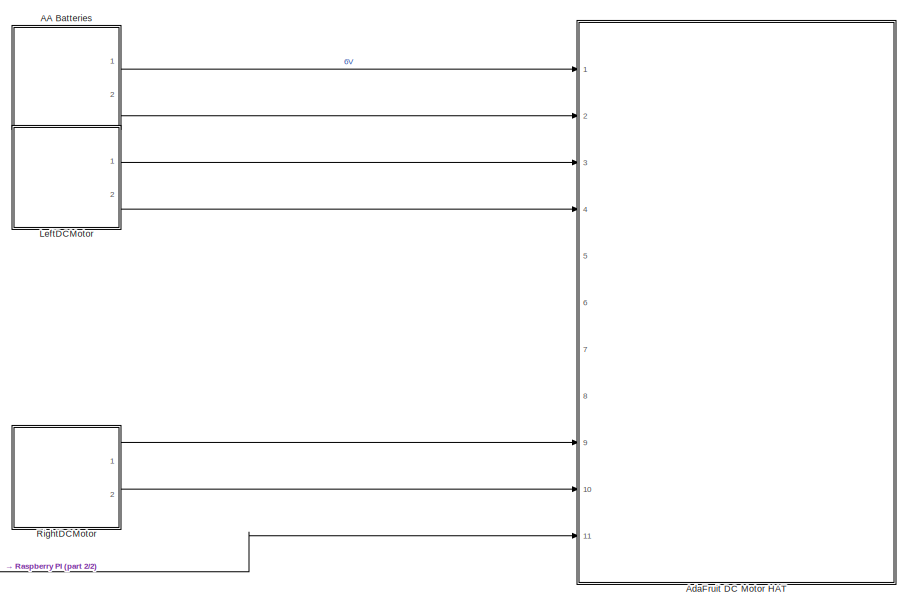
[diagram: root canvas - part 1/2, right side, full height]
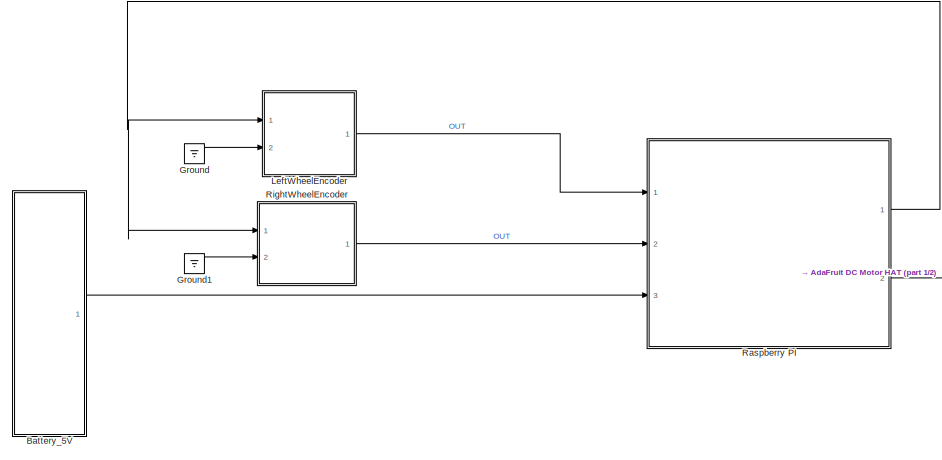
[diagram: root canvas - part 2/2, bottom left region]
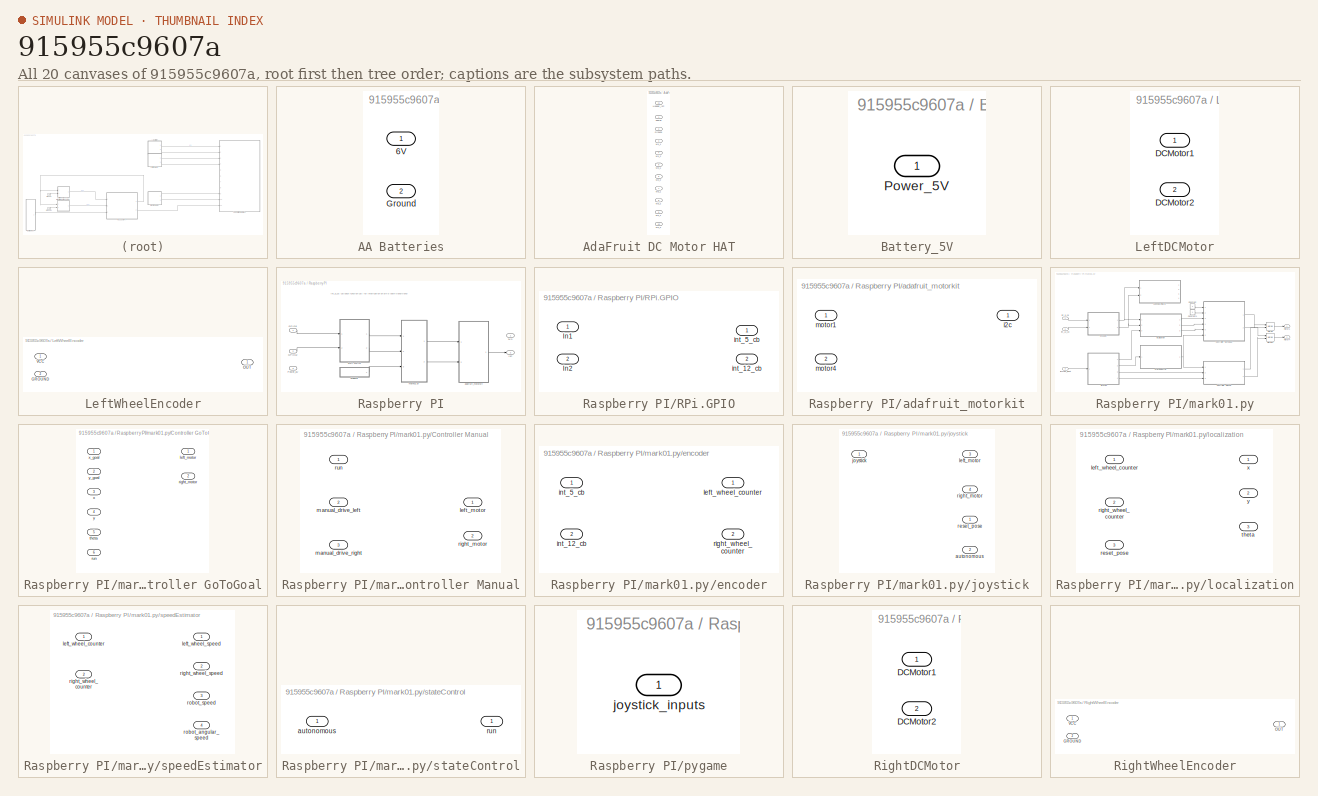
[diagram: thumbnail index - all 20 canvases of the model, root first then tree order]
MODEL slx_915955c9607a
KIND model
CONFIG AbsTol = auto
CONFIG EnableMultiTasking = off
CONFIG FixedStep = auto
CONFIG MaxStep = auto
CONFIG MinStep = auto
CONFIG RelTol = 1e-3
CONFIG SampleTimeConstraint = Unconstrained
CONFIG Solver = VariableStepAuto
CONFIG SolverName = VariableStepAuto
CONFIG StartTime = 0.0
CONFIG StopTime = 10.0
BLOCK [SubSystem] AA Batteries
  Ports = [0, 2]
  RequestExecContextInheritance = off
BLOCK [Outport] AA Batteries/6V
  IconDisplay = Port number
BLOCK [Outport] AA Batteries/Ground
  IconDisplay = Port number
  Port = 2
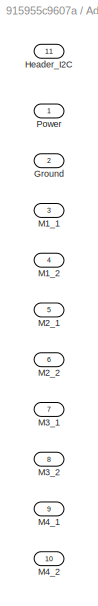
BLOCK [SubSystem] AdaFruit DC Motor HAT
  Ports = [11]
  RequestExecContextInheritance = off
BLOCK [Inport] AdaFruit DC Motor HAT/Ground
  IconDisplay = Port number
  Port = 2
BLOCK [Inport] AdaFruit DC Motor HAT/Header_I2C
  IconDisplay = Port number
  Port = 11
BLOCK [Inport] AdaFruit DC Motor HAT/M1_1
  IconDisplay = Port number
  Port = 3
BLOCK [Inport] AdaFruit DC Motor HAT/M1_2
  IconDisplay = Port number
  Port = 4
BLOCK [Inport] AdaFruit DC Motor HAT/M2_1
  IconDisplay = Port number
  Port = 5
BLOCK [Inport] AdaFruit DC Motor HAT/M2_2
  IconDisplay = Port number
  Port = 6
BLOCK [Inport] AdaFruit DC Motor HAT/M3_1
  IconDisplay = Port number
  Port = 7
BLOCK [Inport] AdaFruit DC Motor HAT/M3_2
  IconDisplay = Port number
  Port = 8
BLOCK [Inport] AdaFruit DC Motor HAT/M4_1
  IconDisplay = Port number
  Port = 9
BLOCK [Inport] AdaFruit DC Motor HAT/M4_2
  IconDisplay = Port number
  Port = 10
BLOCK [Inport] AdaFruit DC Motor HAT/Power
  IconDisplay = Port number
BLOCK [SubSystem] Battery_5V
  Ports = [0, 1]
  RequestExecContextInheritance = off
BLOCK [Outport] Battery_5V/Power_5V
  IconDisplay = Port number
BLOCK [Ground] Ground
BLOCK [Ground] Ground1
BLOCK [SubSystem] LeftDCMotor
  Ports = [0, 2]
  RequestExecContextInheritance = off
BLOCK [Outport] LeftDCMotor/DCMotor1
  IconDisplay = Port number
BLOCK [Outport] LeftDCMotor/DCMotor2
  IconDisplay = Port number
  Port = 2
BLOCK [SubSystem] LeftWheelEncoder
  Ports = [2, 1]
  RequestExecContextInheritance = off
BLOCK [Inport] LeftWheelEncoder/GROUND
  IconDisplay = Port number
  Port = 2
BLOCK [Outport] LeftWheelEncoder/OUT
  IconDisplay = Port number
BLOCK [Inport] LeftWheelEncoder/VCC
  IconDisplay = Port number
BLOCK [SubSystem] Raspberry PI
  Ports = [3, 2]
  RequestExecContextInheritance = off
BLOCK [Outport] Raspberry PI/3V3
  IconDisplay = Port number
BLOCK [Inport] Raspberry PI/GPIO12
  IconDisplay = Port number
  Port = 2
BLOCK [Inport] Raspberry PI/GPIO5
  IconDisplay = Port number
BLOCK [Outport] Raspberry PI/I2C
  IconDisplay = Port number
  Port = 2
BLOCK [Inport] Raspberry PI/Power_5V
  IconDisplay = Port number
  Port = 3
BLOCK [SubSystem] Raspberry PI/RPi.GPIO
  Ports = [2, 2]
  RequestExecContextInheritance = off
BLOCK [Inport] Raspberry PI/RPi.GPIO/In1
  IconDisplay = Port number
BLOCK [Inport] Raspberry PI/RPi.GPIO/In2
  IconDisplay = Port number
  Port = 2
BLOCK [Outport] Raspberry PI/RPi.GPIO/int_12_cb
  IconDisplay = Port number
  Port = 2
BLOCK [Outport] Raspberry PI/RPi.GPIO/int_5_cb
  IconDisplay = Port number
BLOCK [SubSystem] Raspberry PI/adafruit_motorkit
  Ports = [2, 1]
  RequestExecContextInheritance = off
BLOCK [Outport] Raspberry PI/adafruit_motorkit/i2c
  IconDisplay = Port number
BLOCK [Inport] Raspberry PI/adafruit_motorkit/motor1
  IconDisplay = Port number
BLOCK [Inport] Raspberry PI/adafruit_motorkit/motor4
  IconDisplay = Port number
  Port = 2
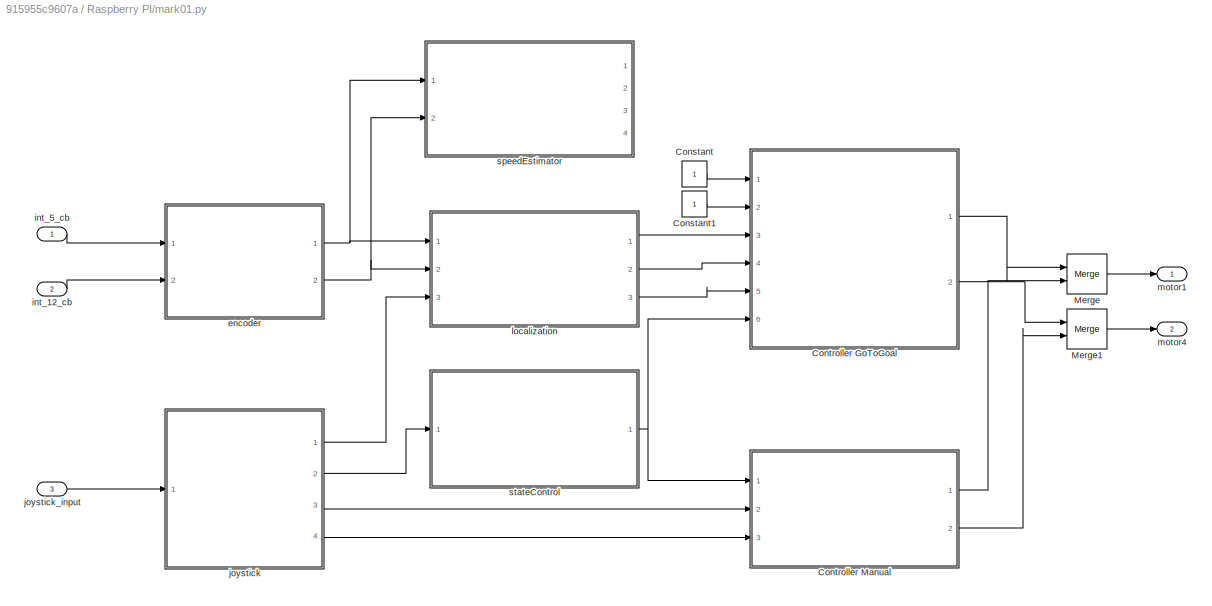
BLOCK [SubSystem] Raspberry PI/mark01.py
  Ports = [3, 2]
  RequestExecContextInheritance = off
BLOCK [Constant] Raspberry PI/mark01.py/Constant
BLOCK [Constant] Raspberry PI/mark01.py/Constant1
BLOCK [SubSystem] Raspberry PI/mark01.py/Controller GoToGoal
  Ports = [6, 2]
  RequestExecContextInheritance = off
BLOCK [Outport] Raspberry PI/mark01.py/Controller GoToGoal/left_motor
  IconDisplay = Port number
BLOCK [Outport] Raspberry PI/mark01.py/Controller GoToGoal/right_motor
  IconDisplay = Port number
  Port = 2
BLOCK [Inport] Raspberry PI/mark01.py/Controller GoToGoal/run
  IconDisplay = Port number
  Port = 6
BLOCK [Inport] Raspberry PI/mark01.py/Controller GoToGoal/theta
  IconDisplay = Port number
  Port = 5
BLOCK [Inport] Raspberry PI/mark01.py/Controller GoToGoal/x
  IconDisplay = Port number
  Port = 3
BLOCK [Inport] Raspberry PI/mark01.py/Controller GoToGoal/x_goal
  IconDisplay = Port number
BLOCK [Inport] Raspberry PI/mark01.py/Controller GoToGoal/y
  IconDisplay = Port number
  Port = 4
BLOCK [Inport] Raspberry PI/mark01.py/Controller GoToGoal/y_goal
  IconDisplay = Port number
  Port = 2
BLOCK [SubSystem] Raspberry PI/mark01.py/Controller Manual
  Ports = [3, 2]
  RequestExecContextInheritance = off
BLOCK [Outport] Raspberry PI/mark01.py/Controller Manual/left_motor
  IconDisplay = Port number
BLOCK [Inport] Raspberry PI/mark01.py/Controller Manual/manual_drive_left
  IconDisplay = Port number
  Port = 2
BLOCK [Inport] Raspberry PI/mark01.py/Controller Manual/manual_drive_right
  IconDisplay = Port number
  Port = 3
BLOCK [Outport] Raspberry PI/mark01.py/Controller Manual/right_motor
  IconDisplay = Port number
  Port = 2
BLOCK [Inport] Raspberry PI/mark01.py/Controller Manual/run
  IconDisplay = Port number
BLOCK [Merge] Raspberry PI/mark01.py/Merge
  Ports = [2, 1]
BLOCK [Merge] Raspberry PI/mark01.py/Merge1
  Ports = [2, 1]
BLOCK [SubSystem] Raspberry PI/mark01.py/encoder
  Ports = [2, 2]
  RequestExecContextInheritance = off
BLOCK [Inport] Raspberry PI/mark01.py/encoder/int_12_cb
  IconDisplay = Port number
  Port = 2
BLOCK [Inport] Raspberry PI/mark01.py/encoder/int_5_cb
  IconDisplay = Port number
BLOCK [Outport] Raspberry PI/mark01.py/encoder/left_wheel_counter
  IconDisplay = Port number
BLOCK [Outport] Raspberry PI/mark01.py/encoder/right_wheel_counter
  IconDisplay = Port number
  Port = 2
BLOCK [Inport] Raspberry PI/mark01.py/int_12_cb
  IconDisplay = Port number
  Port = 2
BLOCK [Inport] Raspberry PI/mark01.py/int_5_cb
  IconDisplay = Port number
BLOCK [SubSystem] Raspberry PI/mark01.py/joystick
  Ports = [1, 4]
  RequestExecContextInheritance = off
BLOCK [Outport] Raspberry PI/mark01.py/joystick/autonomous
  IconDisplay = Port number
  Port = 2
BLOCK [Inport] Raspberry PI/mark01.py/joystick/joystick
  IconDisplay = Port number
BLOCK [Outport] Raspberry PI/mark01.py/joystick/left_motor
  IconDisplay = Port number
  Port = 3
BLOCK [Outport] Raspberry PI/mark01.py/joystick/reset_pose
  IconDisplay = Port number
BLOCK [Outport] Raspberry PI/mark01.py/joystick/right_motor
  IconDisplay = Port number
  Port = 4
BLOCK [Inport] Raspberry PI/mark01.py/joystick_input
  IconDisplay = Port number
  Port = 3
BLOCK [SubSystem] Raspberry PI/mark01.py/localization
  Ports = [3, 3]
  RequestExecContextInheritance = off
BLOCK [Inport] Raspberry PI/mark01.py/localization/left_wheel_counter
  IconDisplay = Port number
BLOCK [Inport] Raspberry PI/mark01.py/localization/reset_pose
  IconDisplay = Port number
  Port = 3
BLOCK [Inport] Raspberry PI/mark01.py/localization/right_wheel_counter
  IconDisplay = Port number
  Port = 2
BLOCK [Outport] Raspberry PI/mark01.py/localization/theta
  IconDisplay = Port number
  Port = 3
BLOCK [Outport] Raspberry PI/mark01.py/localization/x
  IconDisplay = Port number
BLOCK [Outport] Raspberry PI/mark01.py/localization/y
  IconDisplay = Port number
  Port = 2
BLOCK [Outport] Raspberry PI/mark01.py/motor1
  IconDisplay = Port number
BLOCK [Outport] Raspberry PI/mark01.py/motor4
  IconDisplay = Port number
  Port = 2
BLOCK [SubSystem] Raspberry PI/mark01.py/speedEstimator
  Ports = [2, 4]
  RequestExecContextInheritance = off
BLOCK [Inport] Raspberry PI/mark01.py/speedEstimator/left_wheel_counter
  IconDisplay = Port number
BLOCK [Outport] Raspberry PI/mark01.py/speedEstimator/left_wheel_speed
  IconDisplay = Port number
BLOCK [Inport] Raspberry PI/mark01.py/speedEstimator/right_wheel_counter
  IconDisplay = Port number
  Port = 2
BLOCK [Outport] Raspberry PI/mark01.py/speedEstimator/right_wheel_speed
  IconDisplay = Port number
  Port = 2
BLOCK [Outport] Raspberry PI/mark01.py/speedEstimator/robot_angular_speed
  IconDisplay = Port number
  Port = 4
BLOCK [Outport] Raspberry PI/mark01.py/speedEstimator/robot_speed
  IconDisplay = Port number
  Port = 3
BLOCK [SubSystem] Raspberry PI/mark01.py/stateControl
  Ports = [1, 1]
  RequestExecContextInheritance = off
BLOCK [Inport] Raspberry PI/mark01.py/stateControl/autonomous
  IconDisplay = Port number
BLOCK [Outport] Raspberry PI/mark01.py/stateControl/run
  IconDisplay = Port number
BLOCK [SubSystem] Raspberry PI/pygame
  Ports = [0, 1]
  RequestExecContextInheritance = off
BLOCK [Outport] Raspberry PI/pygame/joystick_inputs
  IconDisplay = Port number
BLOCK [SubSystem] RightDCMotor
  Ports = [0, 2]
  RequestExecContextInheritance = off
BLOCK [Outport] RightDCMotor/DCMotor1
  IconDisplay = Port number
BLOCK [Outport] RightDCMotor/DCMotor2
  IconDisplay = Port number
  Port = 2
BLOCK [SubSystem] RightWheelEncoder
  Ports = [2, 1]
  RequestExecContextInheritance = off
BLOCK [Inport] RightWheelEncoder/GROUND
  IconDisplay = Port number
  Port = 2
BLOCK [Outport] RightWheelEncoder/OUT
  IconDisplay = Port number
BLOCK [Inport] RightWheelEncoder/VCC
  IconDisplay = Port number
ANNOTATION Raspberry PI: int_5_cb: callback function call for interruption on pin 5 (both transitions)
LINE AA Batteries:1 -> AdaFruit DC Motor HAT:1
LINE AA Batteries:2 -> AdaFruit DC Motor HAT:2
LINE Battery_5V:1 -> Raspberry PI:3
LINE Ground1:1 -> RightWheelEncoder:2
LINE Ground:1 -> LeftWheelEncoder:2
LINE LeftDCMotor:1 -> AdaFruit DC Motor HAT:3
LINE LeftDCMotor:2 -> AdaFruit DC Motor HAT:4
LINE LeftWheelEncoder:1 -> Raspberry PI:1
LINE Raspberry PI/GPIO12:1 -> Raspberry PI/RPi.GPIO:2
LINE Raspberry PI/GPIO5:1 -> Raspberry PI/RPi.GPIO:1
LINE Raspberry PI/RPi.GPIO:1 -> Raspberry PI/mark01.py:1
LINE Raspberry PI/RPi.GPIO:2 -> Raspberry PI/mark01.py:2
LINE Raspberry PI/adafruit_motorkit:1 -> Raspberry PI/I2C:1
LINE Raspberry PI/mark01.py/Constant1:1 -> Raspberry PI/mark01.py/Controller GoToGoal:2
LINE Raspberry PI/mark01.py/Constant:1 -> Raspberry PI/mark01.py/Controller GoToGoal:1
LINE Raspberry PI/mark01.py/Controller GoToGoal:1 -> Raspberry PI/mark01.py/Merge:1
LINE Raspberry PI/mark01.py/Controller GoToGoal:2 -> Raspberry PI/mark01.py/Merge1:1
LINE Raspberry PI/mark01.py/Controller Manual:1 -> Raspberry PI/mark01.py/Merge:2
LINE Raspberry PI/mark01.py/Controller Manual:2 -> Raspberry PI/mark01.py/Merge1:2
LINE Raspberry PI/mark01.py/Merge1:1 -> Raspberry PI/mark01.py/motor4:1
LINE Raspberry PI/mark01.py/Merge:1 -> Raspberry PI/mark01.py/motor1:1
NET Raspberry PI/mark01.py/encoder:1 -> Raspberry PI/mark01.py/localization:1, Raspberry PI/mark01.py/speedEstimator:1
NET Raspberry PI/mark01.py/encoder:2 -> Raspberry PI/mark01.py/localization:2, Raspberry PI/mark01.py/speedEstimator:2
LINE Raspberry PI/mark01.py/int_12_cb:1 -> Raspberry PI/mark01.py/encoder:2
LINE Raspberry PI/mark01.py/int_5_cb:1 -> Raspberry PI/mark01.py/encoder:1
LINE Raspberry PI/mark01.py/joystick:1 -> Raspberry PI/mark01.py/localization:3
LINE Raspberry PI/mark01.py/joystick:2 -> Raspberry PI/mark01.py/stateControl:1
LINE Raspberry PI/mark01.py/joystick:3 -> Raspberry PI/mark01.py/Controller Manual:2
LINE Raspberry PI/mark01.py/joystick:4 -> Raspberry PI/mark01.py/Controller Manual:3
LINE Raspberry PI/mark01.py/joystick_input:1 -> Raspberry PI/mark01.py/joystick:1
LINE Raspberry PI/mark01.py/localization:1 -> Raspberry PI/mark01.py/Controller GoToGoal:3
LINE Raspberry PI/mark01.py/localization:2 -> Raspberry PI/mark01.py/Controller GoToGoal:4
LINE Raspberry PI/mark01.py/localization:3 -> Raspberry PI/mark01.py/Controller GoToGoal:5
NET Raspberry PI/mark01.py/stateControl:1 -> Raspberry PI/mark01.py/Controller GoToGoal:6, Raspberry PI/mark01.py/Controller Manual:1
LINE Raspberry PI/mark01.py:1 -> Raspberry PI/adafruit_motorkit:1
LINE Raspberry PI/mark01.py:2 -> Raspberry PI/adafruit_motorkit:2
LINE Raspberry PI/pygame:1 -> Raspberry PI/mark01.py:3
NET Raspberry PI:1 -> LeftWheelEncoder:1, RightWheelEncoder:1
LINE Raspberry PI:2 -> AdaFruit DC Motor HAT:11
LINE RightDCMotor:1 -> AdaFruit DC Motor HAT:9
LINE RightDCMotor:2 -> AdaFruit DC Motor HAT:10
LINE RightWheelEncoder:1 -> Raspberry PI:2
note: NET lines group one-source signal fan-out (src -> all destinations, sorted); 1:1 wires keep LINE
